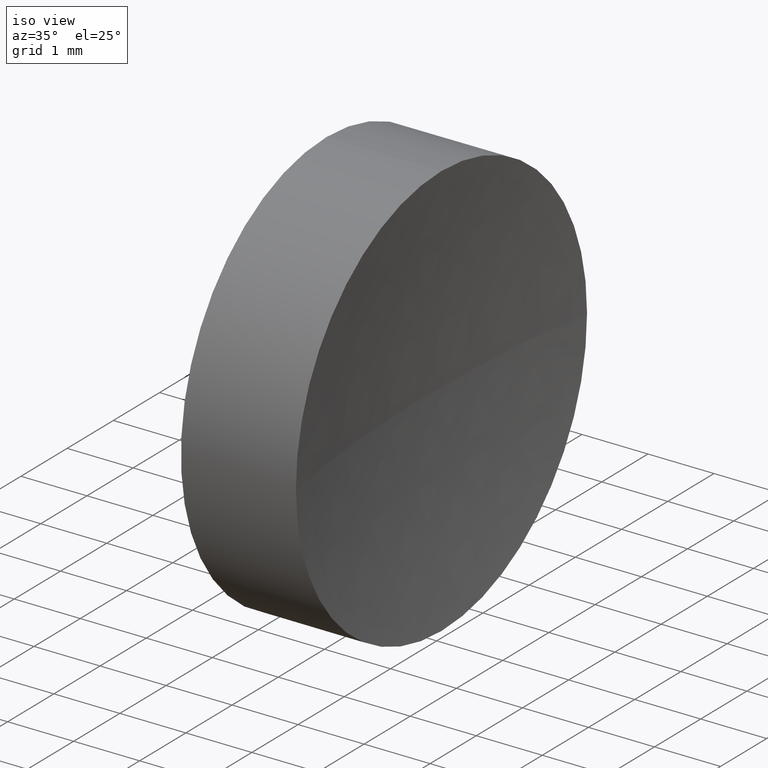
[diagram: clean part render]
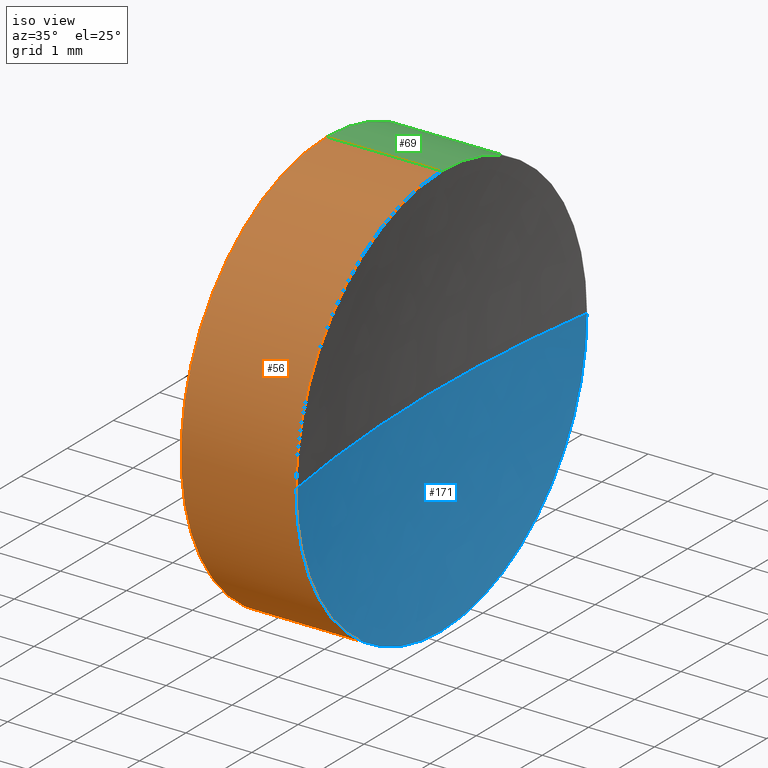
[diagram: same view with three faces highlighted in distinct colors, each labeled with its STEP entity id]
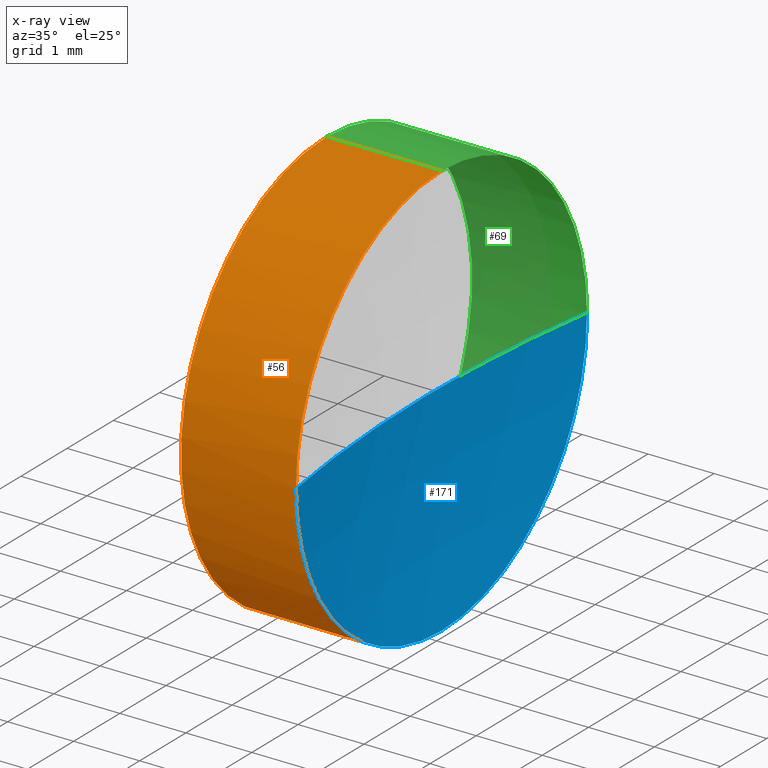
[diagram: x-ray of the same camera — body ghosted, the three highlighted faces saturated]
A machine part, iso view with three faces highlighted in distinct colors.
The next image is the same camera in x-ray (body ghosted, the three faces saturated) — at least one of them is partly hidden behind the body in this view.
Their STEP definitions:

[orange] entity #56 — the highlighted cylindrical surface (partial cylindrical patch) has radius 3.15 mm, axis along (-1, -0, -0).
#7 = EDGE_CURVE ( 'NONE', #145, #57, #45, .T. ) ;
#8 = CARTESIAN_POINT ( 'NONE',  ( 24.05093720061594100, 13.03112609140304000, 0.0000000000000000000 ) ) ;
#13 = CARTESIAN_POINT ( 'NONE',  ( 24.05093720061594100, 9.881126091403023900, -3.857637417314176500E-016 ) ) ;
#16 = DIRECTION ( 'NONE',  ( -1.000000000000000000, -0.0000000000000000000, -0.0000000000000000000 ) ) ;
#21 = DIRECTION ( 'NONE',  ( 0.0000000000000000000, 0.0000000000000000000, 1.000000000000000000 ) ) ;
#25 = CIRCLE ( 'NONE', #153, 3.150000000000001700 ) ;
#31 = CARTESIAN_POINT ( 'NONE',  ( 22.30926883257449200, 13.03112609140304000, 0.0000000000000000000 ) ) ;
#34 = DIRECTION ( 'NONE',  ( -1.000000000000000000, -0.0000000000000000000, -0.0000000000000000000 ) ) ;
#38 = ORIENTED_EDGE ( 'NONE', *, *, #7, .F. ) ;
#41 = VERTEX_POINT ( 'NONE', #99 ) ;
#44 = DIRECTION ( 'NONE',  ( 0.0000000000000000000, 0.0000000000000000000, 1.000000000000000000 ) ) ;
#45 = CIRCLE ( 'NONE', #87, 3.149999999999998100 ) ;
#46 = CARTESIAN_POINT ( 'NONE',  ( 22.30926883257449200, 13.03112609140304000, -3.149999999999998100 ) ) ;
#51 = LINE ( 'NONE', #60, #122 ) ;
#54 = EDGE_CURVE ( 'NONE', #41, #115, #25, .T. ) ;
#55 = ORIENTED_EDGE ( 'NONE', *, *, #128, .T. ) ;
#56 = ADVANCED_FACE ( 'NONE', ( #134 ), #67, .T. ) ;
#57 = VERTEX_POINT ( 'NONE', #162 ) ;
#60 = CARTESIAN_POINT ( 'NONE',  ( 20.68403063513288800, 13.03112609140304000, 3.149999999999999900 ) ) ;
#63 = ORIENTED_EDGE ( 'NONE', *, *, #147, .F. ) ;
#67 = CYLINDRICAL_SURFACE ( 'NONE', #106, 3.149999999999999900 ) ;
#68 = AXIS2_PLACEMENT_3D ( 'NONE', #8, #34, #21 ) ;
#75 = ORIENTED_EDGE ( 'NONE', *, *, #54, .T. ) ;
#82 = CIRCLE ( 'NONE', #68, 3.150000000000001700 ) ;
#87 = AXIS2_PLACEMENT_3D ( 'NONE', #31, #114, #133 ) ;
#99 = CARTESIAN_POINT ( 'NONE',  ( 24.05093720061594100, 13.03112609140304000, -3.150000000000001200 ) ) ;
#100 = DIRECTION ( 'NONE',  ( -1.000000000000000000, -0.0000000000000000000, -0.0000000000000000000 ) ) ;
#106 = AXIS2_PLACEMENT_3D ( 'NONE', #161, #100, #149 ) ;
#111 = CARTESIAN_POINT ( 'NONE',  ( 24.05093720061594100, 13.03112609140304000, 3.150000000000001200 ) ) ;
#114 = DIRECTION ( 'NONE',  ( -1.000000000000000000, -0.0000000000000000000, -0.0000000000000000000 ) ) ;
#115 = VERTEX_POINT ( 'NONE', #13 ) ;
#119 = CARTESIAN_POINT ( 'NONE',  ( 20.68403063513288800, 13.03112609140304000, -3.149999999999999900 ) ) ;
#122 = VECTOR ( 'NONE', #154, 1000.000000000000000 ) ;
#128 = EDGE_CURVE ( 'NONE', #142, #57, #51, .T. ) ;
#133 = DIRECTION ( 'NONE',  ( 0.0000000000000000000, 0.0000000000000000000, 1.000000000000000000 ) ) ;
#134 = FACE_OUTER_BOUND ( 'NONE', #159, .T. ) ;
#136 = LINE ( 'NONE', #119, #184 ) ;
#140 = EDGE_CURVE ( 'NONE', #115, #142, #82, .T. ) ;
#142 = VERTEX_POINT ( 'NONE', #111 ) ;
#145 = VERTEX_POINT ( 'NONE', #46 ) ;
#147 = EDGE_CURVE ( 'NONE', #41, #145, #136, .T. ) ;
#149 = DIRECTION ( 'NONE',  ( 0.0000000000000000000, 0.0000000000000000000, 1.000000000000000000 ) ) ;
#153 = AXIS2_PLACEMENT_3D ( 'NONE', #176, #16, #44 ) ;
#154 = DIRECTION ( 'NONE',  ( -1.000000000000000000, -0.0000000000000000000, -0.0000000000000000000 ) ) ;
#156 = ORIENTED_EDGE ( 'NONE', *, *, #140, .T. ) ;
#159 = EDGE_LOOP ( 'NONE', ( #63, #75, #156, #55, #38 ) ) ;
#161 = CARTESIAN_POINT ( 'NONE',  ( 20.68403063513288800, 13.03112609140304000, 0.0000000000000000000 ) ) ;
#162 = CARTESIAN_POINT ( 'NONE',  ( 22.30926883257449200, 13.03112609140304000, 3.149999999999998100 ) ) ;
#167 = DIRECTION ( 'NONE',  ( -1.000000000000000000, -0.0000000000000000000, -0.0000000000000000000 ) ) ;
#176 = CARTESIAN_POINT ( 'NONE',  ( 24.05093720061594100, 13.03112609140304000, 0.0000000000000000000 ) ) ;
#184 = VECTOR ( 'NONE', #167, 1000.000000000000000 ) ;

[blue] entity #171 — the highlighted spherical surface has radius 20.65 mm.
#6 = CARTESIAN_POINT ( 'NONE',  ( 24.05093720061594100, 13.03112609140304000, 0.0000000000000000000 ) ) ;
#13 = CARTESIAN_POINT ( 'NONE',  ( 24.05093720061594100, 9.881126091403023900, -3.857637417314176500E-016 ) ) ;
#16 = DIRECTION ( 'NONE',  ( -1.000000000000000000, -0.0000000000000000000, -0.0000000000000000000 ) ) ;
#20 = DIRECTION ( 'NONE',  ( 0.0000000000000000000, 0.0000000000000000000, 1.000000000000000000 ) ) ;
#22 = AXIS2_PLACEMENT_3D ( 'NONE', #30, #129, #43 ) ;
#23 = ORIENTED_EDGE ( 'NONE', *, *, #61, .F. ) ;
#24 = DIRECTION ( 'NONE',  ( -1.000000000000000000, -0.0000000000000000000, -0.0000000000000000000 ) ) ;
#25 = CIRCLE ( 'NONE', #153, 3.150000000000001700 ) ;
#26 = FACE_OUTER_BOUND ( 'NONE', #120, .T. ) ;
#30 = CARTESIAN_POINT ( 'NONE',  ( 44.45926883257450200, 13.03112609140303700, 0.0000000000000000000 ) ) ;
#36 = CARTESIAN_POINT ( 'NONE',  ( 44.45926883257450200, 13.03112609140303700, 0.0000000000000000000 ) ) ;
#40 = AXIS2_PLACEMENT_3D ( 'NONE', #6, #24, #116 ) ;
#41 = VERTEX_POINT ( 'NONE', #99 ) ;
#43 = DIRECTION ( 'NONE',  ( 0.0000000000000000000, 1.000000000000000000, 1.224646799147353200E-016 ) ) ;
#44 = DIRECTION ( 'NONE',  ( 0.0000000000000000000, 0.0000000000000000000, 1.000000000000000000 ) ) ;
#49 = ORIENTED_EDGE ( 'NONE', *, *, #117, .F. ) ;
#54 = EDGE_CURVE ( 'NONE', #41, #115, #25, .T. ) ;
#61 = EDGE_CURVE ( 'NONE', #115, #109, #104, .T. ) ;
#62 = CARTESIAN_POINT ( 'NONE',  ( 24.05093720061594100, 16.18112609140305100, 0.0000000000000000000 ) ) ;
#70 = AXIS2_PLACEMENT_3D ( 'NONE', #105, #164, #91 ) ;
#77 = DIRECTION ( 'NONE',  ( 1.000000000000000000, 0.0000000000000000000, 0.0000000000000000000 ) ) ;
#79 = ORIENTED_EDGE ( 'NONE', *, *, #169, .T. ) ;
#85 = CARTESIAN_POINT ( 'NONE',  ( 23.80926883257448900, 13.03112609140303800, 0.0000000000000000000 ) ) ;
#86 = CIRCLE ( 'NONE', #40, 3.150000000000001700 ) ;
#91 = DIRECTION ( 'NONE',  ( 0.0000000000000000000, 1.000000000000000000, 0.0000000000000000000 ) ) ;
#93 = CIRCLE ( 'NONE', #95, 20.65000000000000900 ) ;
#95 = AXIS2_PLACEMENT_3D ( 'NONE', #36, #20, #77 ) ;
#99 = CARTESIAN_POINT ( 'NONE',  ( 24.05093720061594100, 13.03112609140304000, -3.150000000000001200 ) ) ;
#104 = CIRCLE ( 'NONE', #22, 20.65000000000000900 ) ;
#105 = CARTESIAN_POINT ( 'NONE',  ( 44.45926883257450200, 13.03112609140303700, 0.0000000000000000000 ) ) ;
#109 = VERTEX_POINT ( 'NONE', #85 ) ;
#115 = VERTEX_POINT ( 'NONE', #13 ) ;
#116 = DIRECTION ( 'NONE',  ( 0.0000000000000000000, 0.0000000000000000000, 1.000000000000000000 ) ) ;
#117 = EDGE_CURVE ( 'NONE', #138, #41, #86, .T. ) ;
#120 = EDGE_LOOP ( 'NONE', ( #23, #180, #49, #79 ) ) ;
#127 = SPHERICAL_SURFACE ( 'NONE', #70, 20.65000000000000900 ) ;
#129 = DIRECTION ( 'NONE',  ( 0.0000000000000000000, 1.224646799147353200E-016, -1.000000000000000000 ) ) ;
#138 = VERTEX_POINT ( 'NONE', #62 ) ;
#153 = AXIS2_PLACEMENT_3D ( 'NONE', #176, #16, #44 ) ;
#164 = DIRECTION ( 'NONE',  ( 0.0000000000000000000, 0.0000000000000000000, -1.000000000000000000 ) ) ;
#169 = EDGE_CURVE ( 'NONE', #138, #109, #93, .T. ) ;
#171 = ADVANCED_FACE ( 'NONE', ( #26 ), #127, .F. ) ;
#176 = CARTESIAN_POINT ( 'NONE',  ( 24.05093720061594100, 13.03112609140304000, 0.0000000000000000000 ) ) ;
#180 = ORIENTED_EDGE ( 'NONE', *, *, #54, .F. ) ;

[green] entity #69 — the highlighted cylindrical surface (partial cylindrical patch) has radius 3.15 mm, axis along (-1, -0, -0).
#5 = CARTESIAN_POINT ( 'NONE',  ( 22.30926883257449200, 13.03112609140304000, 0.0000000000000000000 ) ) ;
#6 = CARTESIAN_POINT ( 'NONE',  ( 24.05093720061594100, 13.03112609140304000, 0.0000000000000000000 ) ) ;
#11 = EDGE_CURVE ( 'NONE', #57, #145, #96, .T. ) ;
#24 = DIRECTION ( 'NONE',  ( -1.000000000000000000, -0.0000000000000000000, -0.0000000000000000000 ) ) ;
#35 = AXIS2_PLACEMENT_3D ( 'NONE', #73, #160, #148 ) ;
#39 = ORIENTED_EDGE ( 'NONE', *, *, #11, .F. ) ;
#40 = AXIS2_PLACEMENT_3D ( 'NONE', #6, #24, #116 ) ;
#41 = VERTEX_POINT ( 'NONE', #99 ) ;
#46 = CARTESIAN_POINT ( 'NONE',  ( 22.30926883257449200, 13.03112609140304000, -3.149999999999998100 ) ) ;
#51 = LINE ( 'NONE', #60, #122 ) ;
#57 = VERTEX_POINT ( 'NONE', #162 ) ;
#58 = EDGE_CURVE ( 'NONE', #142, #138, #71, .T. ) ;
#60 = CARTESIAN_POINT ( 'NONE',  ( 20.68403063513288800, 13.03112609140304000, 3.149999999999999900 ) ) ;
#62 = CARTESIAN_POINT ( 'NONE',  ( 24.05093720061594100, 16.18112609140305100, 0.0000000000000000000 ) ) ;
#69 = ADVANCED_FACE ( 'NONE', ( #185 ), #125, .T. ) ;
#71 = CIRCLE ( 'NONE', #35, 3.150000000000001700 ) ;
#72 = DIRECTION ( 'NONE',  ( -1.000000000000000000, -0.0000000000000000000, -0.0000000000000000000 ) ) ;
#73 = CARTESIAN_POINT ( 'NONE',  ( 24.05093720061594100, 13.03112609140304000, 0.0000000000000000000 ) ) ;
#81 = AXIS2_PLACEMENT_3D ( 'NONE', #5, #72, #132 ) ;
#86 = CIRCLE ( 'NONE', #40, 3.150000000000001700 ) ;
#94 = ORIENTED_EDGE ( 'NONE', *, *, #117, .T. ) ;
#96 = CIRCLE ( 'NONE', #81, 3.149999999999998100 ) ;
#97 = AXIS2_PLACEMENT_3D ( 'NONE', #177, #175, #110 ) ;
#99 = CARTESIAN_POINT ( 'NONE',  ( 24.05093720061594100, 13.03112609140304000, -3.150000000000001200 ) ) ;
#110 = DIRECTION ( 'NONE',  ( 0.0000000000000000000, 0.0000000000000000000, 1.000000000000000000 ) ) ;
#111 = CARTESIAN_POINT ( 'NONE',  ( 24.05093720061594100, 13.03112609140304000, 3.150000000000001200 ) ) ;
#116 = DIRECTION ( 'NONE',  ( 0.0000000000000000000, 0.0000000000000000000, 1.000000000000000000 ) ) ;
#117 = EDGE_CURVE ( 'NONE', #138, #41, #86, .T. ) ;
#119 = CARTESIAN_POINT ( 'NONE',  ( 20.68403063513288800, 13.03112609140304000, -3.149999999999999900 ) ) ;
#122 = VECTOR ( 'NONE', #154, 1000.000000000000000 ) ;
#124 = ORIENTED_EDGE ( 'NONE', *, *, #58, .T. ) ;
#125 = CYLINDRICAL_SURFACE ( 'NONE', #97, 3.149999999999999900 ) ;
#128 = EDGE_CURVE ( 'NONE', #142, #57, #51, .T. ) ;
#130 = EDGE_LOOP ( 'NONE', ( #94, #163, #39, #172, #124 ) ) ;
#132 = DIRECTION ( 'NONE',  ( 0.0000000000000000000, 0.0000000000000000000, 1.000000000000000000 ) ) ;
#136 = LINE ( 'NONE', #119, #184 ) ;
#138 = VERTEX_POINT ( 'NONE', #62 ) ;
#142 = VERTEX_POINT ( 'NONE', #111 ) ;
#145 = VERTEX_POINT ( 'NONE', #46 ) ;
#147 = EDGE_CURVE ( 'NONE', #41, #145, #136, .T. ) ;
#148 = DIRECTION ( 'NONE',  ( 0.0000000000000000000, 0.0000000000000000000, 1.000000000000000000 ) ) ;
#154 = DIRECTION ( 'NONE',  ( -1.000000000000000000, -0.0000000000000000000, -0.0000000000000000000 ) ) ;
#160 = DIRECTION ( 'NONE',  ( -1.000000000000000000, -0.0000000000000000000, -0.0000000000000000000 ) ) ;
#162 = CARTESIAN_POINT ( 'NONE',  ( 22.30926883257449200, 13.03112609140304000, 3.149999999999998100 ) ) ;
#163 = ORIENTED_EDGE ( 'NONE', *, *, #147, .T. ) ;
#167 = DIRECTION ( 'NONE',  ( -1.000000000000000000, -0.0000000000000000000, -0.0000000000000000000 ) ) ;
#172 = ORIENTED_EDGE ( 'NONE', *, *, #128, .F. ) ;
#175 = DIRECTION ( 'NONE',  ( -1.000000000000000000, -0.0000000000000000000, -0.0000000000000000000 ) ) ;
#177 = CARTESIAN_POINT ( 'NONE',  ( 20.68403063513288800, 13.03112609140304000, 0.0000000000000000000 ) ) ;
#184 = VECTOR ( 'NONE', #167, 1000.000000000000000 ) ;
#185 = FACE_OUTER_BOUND ( 'NONE', #130, .T. ) ;